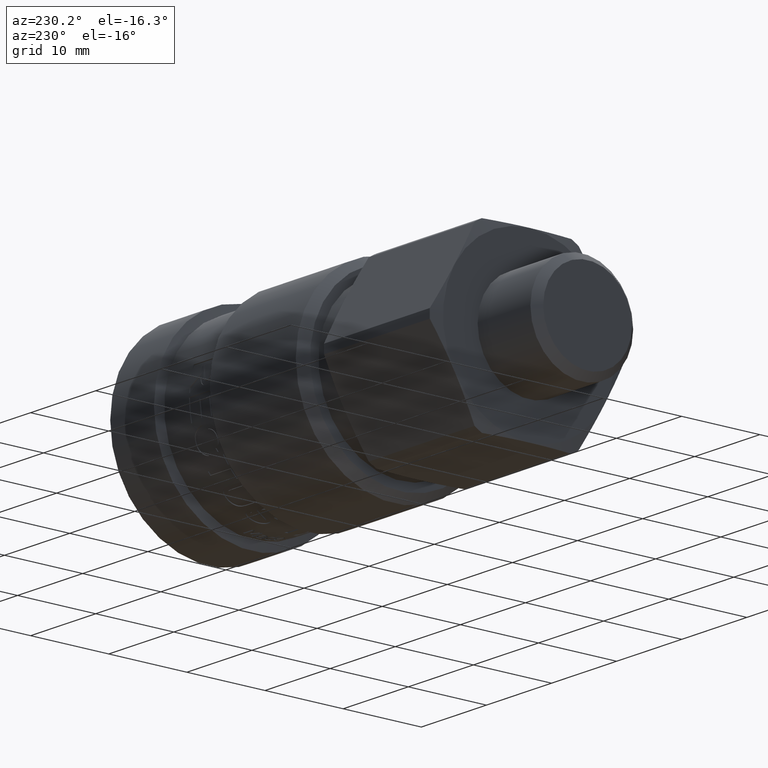
[diagram: clean part render]
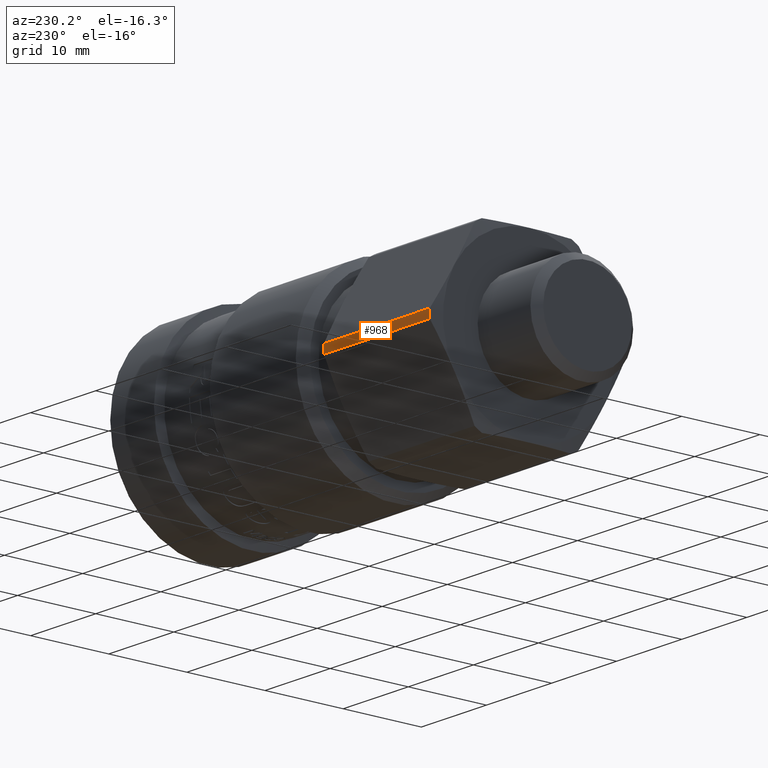
[diagram: same view with one face highlighted and labeled with its STEP entity id]
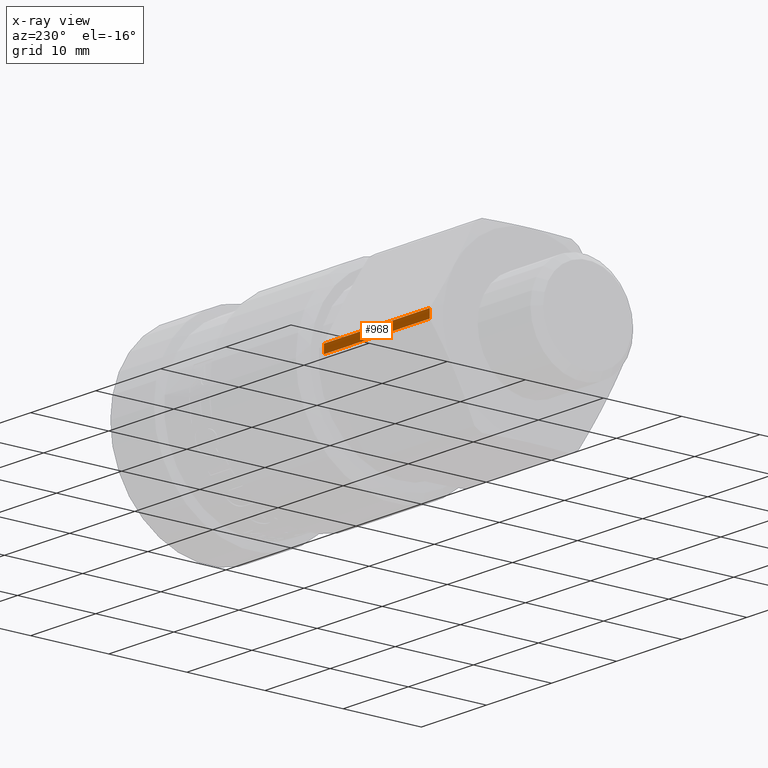
[diagram: x-ray of the same camera — body ghosted, the highlighted face saturated]
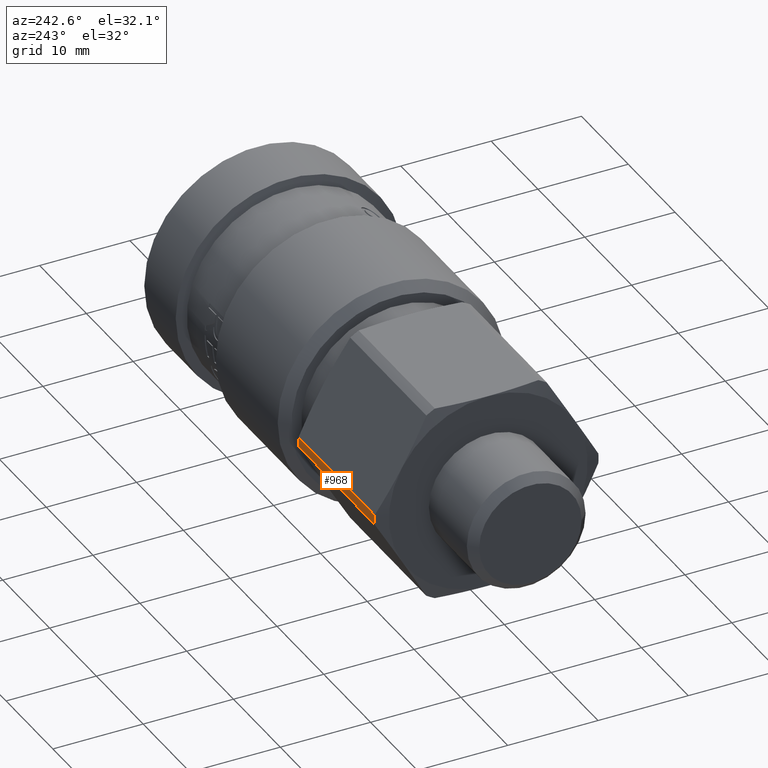
[diagram: same view with one face highlighted and labeled with its STEP entity id]
A machine part, auxiliary view. The second image highlights one B-rep face of the part: STEP entity #968.
The next image is the same camera in x-ray: the body ghosted, the highlighted face saturated — about 0% of this face is hidden behind the body in this view.
A second angle (auxiliary view) of the same face is appended — the face is thin or edge-on in the first view.
In plain terms, the highlighted cylindrical surface (partial cylindrical patch) has radius 12.4 mm, axis along (1, 0, 0).
Its self-contained STEP definition (entity closure, byte-faithful):
#604=CARTESIAN_POINT('',(0.072071130596418,12.388097045879666,0.543186507442507));
#605=VERTEX_POINT('',#604);
#619=CARTESIAN_POINT('',(-16.177671130596437,12.388097045879665,0.543186507442511));
#620=VERTEX_POINT('',#619);
#621=CARTESIAN_POINT('',(-16.177671130596437,12.388097045879663,0.543186507442507));
#622=DIRECTION('',(1.0,0.0,0.0));
#623=VECTOR('',#622,16.249742261192857);
#624=LINE('',#621,#623);
#625=EDGE_CURVE('',#620,#605,#624,.T.);
#648=CARTESIAN_POINT('',(-16.177671130596437,12.388097045879665,-0.543186507442512));
#649=VERTEX_POINT('',#648);
#665=CARTESIAN_POINT('',(0.072071130596418,12.388097045879665,-0.543186507442512));
#666=VERTEX_POINT('',#665);
#667=CARTESIAN_POINT('',(0.072071130596420,12.388097045879668,-0.543186507442507));
#668=DIRECTION('',(-1.0,0.0,0.0));
#669=VECTOR('',#668,16.249742261192857);
#670=LINE('',#667,#669);
#671=EDGE_CURVE('',#666,#649,#670,.T.);
#781=CARTESIAN_POINT('',(0.072071130596423,8.826168E-018,1.421329E-030));
#782=DIRECTION('',(1.0,0.0,0.0));
#783=DIRECTION('',(0.0,-1.0,0.0));
#784=AXIS2_PLACEMENT_3D('',#781,#782,#783);
#785=CIRCLE('',#784,12.400000000000002);
#786=EDGE_CURVE('',#666,#605,#785,.T.);
#951=CARTESIAN_POINT('',(-8.052800000000005,-9.861836E-016,9.706687E-031));
#952=DIRECTION('',(1.0,1.224647E-016,5.546678E-032));
#953=DIRECTION('',(0.0,-1.0,0.0));
#954=AXIS2_PLACEMENT_3D('',#951,#952,#953);
#955=CYLINDRICAL_SURFACE('',#954,12.400000000000002);
#956=ORIENTED_EDGE('',*,*,#625,.T.);
#957=ORIENTED_EDGE('',*,*,#786,.F.);
#958=ORIENTED_EDGE('',*,*,#671,.T.);
#959=CARTESIAN_POINT('',(-16.177671130596433,-1.981193E-015,5.200082E-031));
#960=DIRECTION('',(1.0,0.0,0.0));
#961=DIRECTION('',(0.0,-1.0,0.0));
#962=AXIS2_PLACEMENT_3D('',#959,#960,#961);
#963=CIRCLE('',#962,12.400000000000002);
#964=EDGE_CURVE('',#649,#620,#963,.T.);
#965=ORIENTED_EDGE('',*,*,#964,.T.);
#966=EDGE_LOOP('',(#956,#957,#958,#965));
#967=FACE_OUTER_BOUND('',#966,.T.);
#968=ADVANCED_FACE('',(#967),#955,.T.);